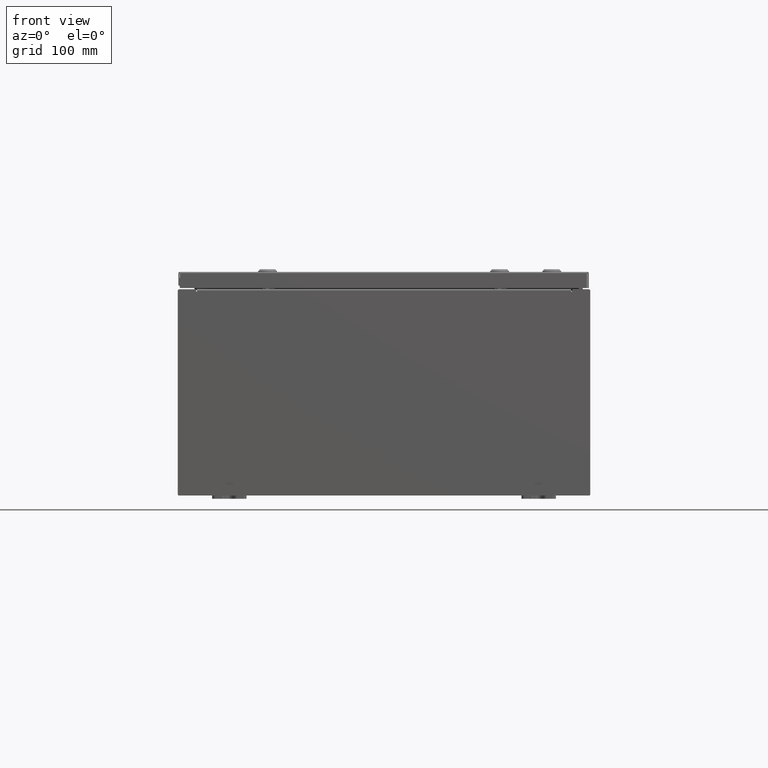
[diagram: clean part render]
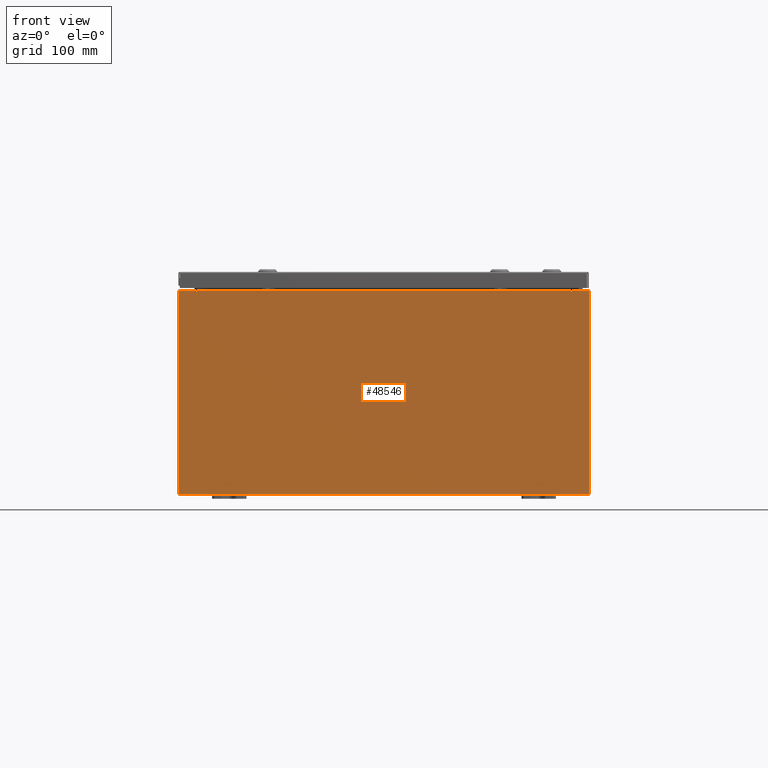
[diagram: same view with one face highlighted and labeled with its STEP entity id]
A machine part, front view. The second image highlights one B-rep face of the part: STEP entity #48546.
In plain terms, the highlighted planar face has unit normal (-0, 1, -0).
Its self-contained STEP definition (entity closure, byte-faithful):
#245 = VERTEX_POINT ( 'NONE', #7871 ) ;
#737 = PLANE ( 'NONE',  #32272 ) ;
#862 = CARTESIAN_POINT ( 'NONE',  ( 10.88720000000000200, 0.0000000000000000000, 5.912300000000001000 ) ) ;
#1307 = CARTESIAN_POINT ( 'NONE',  ( 11.92530000000000000, 0.0000000000000000000, 5.925300000000001800 ) ) ;
#1445 = EDGE_CURVE ( 'NONE', #14653, #61629, #11612, .T. ) ;
#2375 = LINE ( 'NONE', #30296, #10199 ) ;
#4577 = CARTESIAN_POINT ( 'NONE',  ( 10.90587500000000200, 0.0000000000000000000, 5.874950000000001000 ) ) ;
#5034 = DIRECTION ( 'NONE',  ( 0.0000000000000000000, 0.0000000000000000000, -1.000000000000000000 ) ) ;
#5406 = LINE ( 'NONE', #1307, #9373 ) ;
#5771 = DIRECTION ( 'NONE',  ( 0.0000000000000000000, -0.0000000000000000000, -1.000000000000000000 ) ) ;
#7061 = CARTESIAN_POINT ( 'NONE',  ( 10.88720000000000200, 0.0000000000000000000, 5.874950000000001000 ) ) ;
#7871 = CARTESIAN_POINT ( 'NONE',  ( -10.88720000000000000, -0.0000000000000000000, 5.874950000000001000 ) ) ;
#8004 = LINE ( 'NONE', #23601, #32842 ) ;
#8009 = ORIENTED_EDGE ( 'NONE', *, *, #39261, .T. ) ;
#9260 = EDGE_CURVE ( 'NONE', #42024, #35415, #8004, .T. ) ;
#9373 = VECTOR ( 'NONE', #5034, 39.37007874015748100 ) ;
#9418 = VERTEX_POINT ( 'NONE', #7061 ) ;
#9615 = DIRECTION ( 'NONE',  ( 0.0000000000000000000, 0.0000000000000000000, -1.000000000000000000 ) ) ;
#10199 = VECTOR ( 'NONE', #45012, 39.37007874015748100 ) ;
#11426 = CARTESIAN_POINT ( 'NONE',  ( -10.88720000000000000, -1.707404996040164500E-016, 5.912300000000001000 ) ) ;
#11445 = VERTEX_POINT ( 'NONE', #64099 ) ;
#11612 = LINE ( 'NONE', #63038, #62711 ) ;
#12938 = CARTESIAN_POINT ( 'NONE',  ( -11.92530000000000000, 0.0000000000000000000, 5.925300000000000000 ) ) ;
#13257 = EDGE_CURVE ( 'NONE', #58874, #61478, #5406, .T. ) ;
#13674 = VERTEX_POINT ( 'NONE', #52999 ) ;
#13696 = DIRECTION ( 'NONE',  ( 0.0000000000000000000, 0.0000000000000000000, -1.000000000000000000 ) ) ;
#14454 = EDGE_CURVE ( 'NONE', #11445, #35415, #2375, .T. ) ;
#14653 = VERTEX_POINT ( 'NONE', #11426 ) ;
#15061 = CARTESIAN_POINT ( 'NONE',  ( 11.92530000000000000, 0.0000000000000000000, -5.925299999999999100 ) ) ;
#15083 = ORIENTED_EDGE ( 'NONE', *, *, #42961, .F. ) ;
#16437 = CARTESIAN_POINT ( 'NONE',  ( -10.92454999999999800, 0.0000000000000000000, 5.874950000000001000 ) ) ;
#16668 = EDGE_CURVE ( 'NONE', #61478, #41985, #34687, .T. ) ;
#16873 = CARTESIAN_POINT ( 'NONE',  ( 10.88720000000000200, 0.0000000000000000000, 0.0000000000000000000 ) ) ;
#18949 = ORIENTED_EDGE ( 'NONE', *, *, #16668, .T. ) ;
#19102 = EDGE_CURVE ( 'NONE', #9418, #61629, #21473, .T. ) ;
#19332 = LINE ( 'NONE', #53526, #30973 ) ;
#19772 = EDGE_CURVE ( 'NONE', #13674, #29856, #62871, .T. ) ;
#20480 = VECTOR ( 'NONE', #52547, 39.37007874015748100 ) ;
#21473 = LINE ( 'NONE', #16873, #40595 ) ;
#22733 = FACE_OUTER_BOUND ( 'NONE', #33517, .T. ) ;
#23573 = CARTESIAN_POINT ( 'NONE',  ( -10.90587500000000000, 0.0000000000000000000, 5.874950000000001000 ) ) ;
#23601 = CARTESIAN_POINT ( 'NONE',  ( -10.92454999999999800, -0.0000000000000000000, 0.0000000000000000000 ) ) ;
#23805 = CARTESIAN_POINT ( 'NONE',  ( -11.92530000000000000, 0.0000000000000000000, -5.925299999999999100 ) ) ;
#24716 = CIRCLE ( 'NONE', #57766, 0.01867499999999949400 ) ;
#25214 = ORIENTED_EDGE ( 'NONE', *, *, #1445, .T. ) ;
#25896 = ORIENTED_EDGE ( 'NONE', *, *, #39231, .F. ) ;
#25936 = CARTESIAN_POINT ( 'NONE',  ( -11.92530000000000000, 0.0000000000000000000, -5.925299999999999100 ) ) ;
#26319 = ORIENTED_EDGE ( 'NONE', *, *, #19102, .F. ) ;
#27450 = ORIENTED_EDGE ( 'NONE', *, *, #9260, .F. ) ;
#28055 = DIRECTION ( 'NONE',  ( 0.0000000000000000000, 0.0000000000000000000, -1.000000000000000000 ) ) ;
#28242 = ORIENTED_EDGE ( 'NONE', *, *, #32502, .F. ) ;
#28524 = DIRECTION ( 'NONE',  ( 0.0000000000000000000, 0.0000000000000000000, -1.000000000000000000 ) ) ;
#29856 = VERTEX_POINT ( 'NONE', #48990 ) ;
#30296 = CARTESIAN_POINT ( 'NONE',  ( -11.92530000000000000, 0.0000000000000000000, 5.925300000000000000 ) ) ;
#30782 = DIRECTION ( 'NONE',  ( 0.0000000000000000000, 0.0000000000000000000, 1.000000000000000000 ) ) ;
#30973 = VECTOR ( 'NONE', #43589, 39.37007874015748100 ) ;
#31954 = ORIENTED_EDGE ( 'NONE', *, *, #19772, .F. ) ;
#32272 = AXIS2_PLACEMENT_3D ( 'NONE', #49558, #35524, #5771 ) ;
#32502 = EDGE_CURVE ( 'NONE', #245, #42024, #24716, .T. ) ;
#32552 = VECTOR ( 'NONE', #13696, 39.37007874015748100 ) ;
#32842 = VECTOR ( 'NONE', #30782, 39.37007874015748100 ) ;
#33517 = EDGE_LOOP ( 'NONE', ( #27450, #28242, #25896, #25214, #26319, #15083, #31954, #8009, #44031, #18949, #63465, #41744 ) ) ;
#34095 = LINE ( 'NONE', #53311, #32552 ) ;
#34687 = LINE ( 'NONE', #23805, #62069 ) ;
#35415 = VERTEX_POINT ( 'NONE', #61226 ) ;
#35524 = DIRECTION ( 'NONE',  ( 0.0000000000000000000, -1.000000000000000000, 0.0000000000000000000 ) ) ;
#39231 = EDGE_CURVE ( 'NONE', #14653, #245, #34095, .T. ) ;
#39261 = EDGE_CURVE ( 'NONE', #13674, #58874, #19332, .T. ) ;
#39325 = DIRECTION ( 'NONE',  ( -0.0000000000000000000, 1.000000000000000000, -0.0000000000000000000 ) ) ;
#40595 = VECTOR ( 'NONE', #46523, 39.37007874015748100 ) ;
#41744 = ORIENTED_EDGE ( 'NONE', *, *, #14454, .T. ) ;
#41985 = VERTEX_POINT ( 'NONE', #25936 ) ;
#42024 = VERTEX_POINT ( 'NONE', #16437 ) ;
#42961 = EDGE_CURVE ( 'NONE', #29856, #9418, #57872, .T. ) ;
#43589 = DIRECTION ( 'NONE',  ( 1.000000000000000000, 0.0000000000000000000, 4.581600452255731000E-017 ) ) ;
#44031 = ORIENTED_EDGE ( 'NONE', *, *, #13257, .T. ) ;
#45012 = DIRECTION ( 'NONE',  ( 1.000000000000000000, 0.0000000000000000000, 4.581600452255731000E-017 ) ) ;
#46523 = DIRECTION ( 'NONE',  ( 0.0000000000000000000, 0.0000000000000000000, 1.000000000000000000 ) ) ;
#48546 = ADVANCED_FACE ( 'NONE', ( #22733 ), #737, .F. ) ;
#48990 = CARTESIAN_POINT ( 'NONE',  ( 10.92455000000000000, 0.0000000000000000000, 5.874950000000001000 ) ) ;
#49558 = CARTESIAN_POINT ( 'NONE',  ( 0.0000000000000000000, 0.0000000000000000000, 0.0000000000000000000 ) ) ;
#49859 = AXIS2_PLACEMENT_3D ( 'NONE', #4577, #39325, #9615 ) ;
#52547 = DIRECTION ( 'NONE',  ( -0.0000000000000000000, -0.0000000000000000000, 1.000000000000000000 ) ) ;
#52999 = CARTESIAN_POINT ( 'NONE',  ( 10.92455000000000000, 0.0000000000000000000, 5.925300000000001800 ) ) ;
#53311 = CARTESIAN_POINT ( 'NONE',  ( -10.88720000000000000, -0.0000000000000000000, 0.0000000000000000000 ) ) ;
#53454 = DIRECTION ( 'NONE',  ( -1.000000000000000000, -0.0000000000000000000, -0.0000000000000000000 ) ) ;
#53526 = CARTESIAN_POINT ( 'NONE',  ( -11.92530000000000000, 0.0000000000000000000, 5.925300000000000000 ) ) ;
#57341 = VECTOR ( 'NONE', #28055, 39.37007874015748100 ) ;
#57766 = AXIS2_PLACEMENT_3D ( 'NONE', #23573, #58137, #28524 ) ;
#57872 = CIRCLE ( 'NONE', #49859, 0.01867499999999949400 ) ;
#58137 = DIRECTION ( 'NONE',  ( -0.0000000000000000000, 1.000000000000000000, -0.0000000000000000000 ) ) ;
#58874 = VERTEX_POINT ( 'NONE', #59440 ) ;
#59440 = CARTESIAN_POINT ( 'NONE',  ( 11.92530000000000000, 0.0000000000000000000, 5.925300000000001800 ) ) ;
#61073 = EDGE_CURVE ( 'NONE', #41985, #11445, #61517, .T. ) ;
#61226 = CARTESIAN_POINT ( 'NONE',  ( -10.92454999999999800, 0.0000000000000000000, 5.925300000000000000 ) ) ;
#61478 = VERTEX_POINT ( 'NONE', #15061 ) ;
#61517 = LINE ( 'NONE', #12938, #20480 ) ;
#61629 = VERTEX_POINT ( 'NONE', #862 ) ;
#62069 = VECTOR ( 'NONE', #53454, 39.37007874015748100 ) ;
#62650 = CARTESIAN_POINT ( 'NONE',  ( 10.92455000000000000, 0.0000000000000000000, 0.0000000000000000000 ) ) ;
#62711 = VECTOR ( 'NONE', #63316, 39.37007874015748100 ) ;
#62871 = LINE ( 'NONE', #62650, #57341 ) ;
#63038 = CARTESIAN_POINT ( 'NONE',  ( -10.88720000000000200, -1.707404996040164500E-016, 5.912300000000001000 ) ) ;
#63316 = DIRECTION ( 'NONE',  ( 1.000000000000000000, 0.0000000000000000000, 0.0000000000000000000 ) ) ;
#63465 = ORIENTED_EDGE ( 'NONE', *, *, #61073, .T. ) ;
#64099 = CARTESIAN_POINT ( 'NONE',  ( -11.92530000000000000, 0.0000000000000000000, 5.925300000000000000 ) ) ;